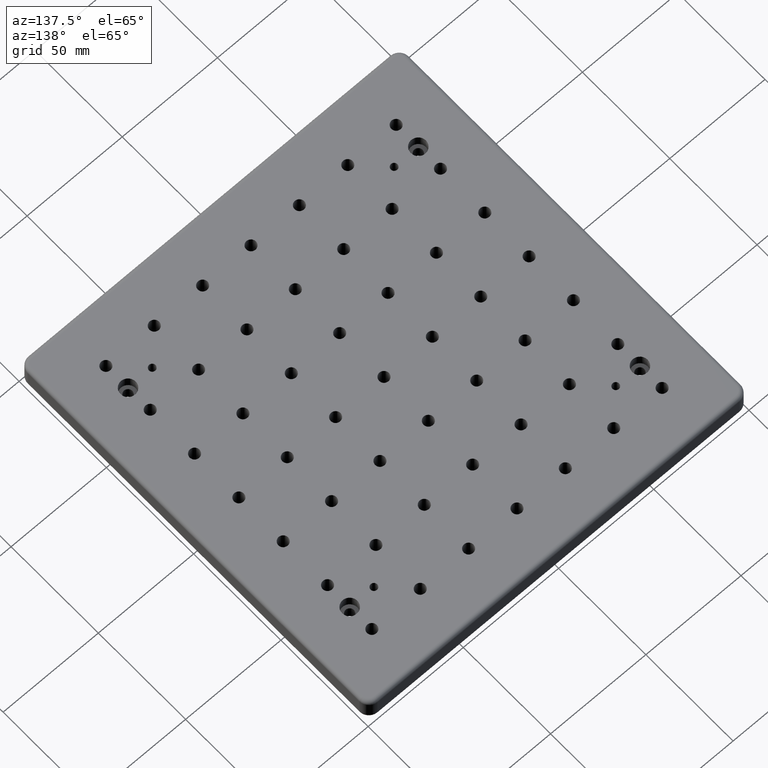
[diagram: clean part render]
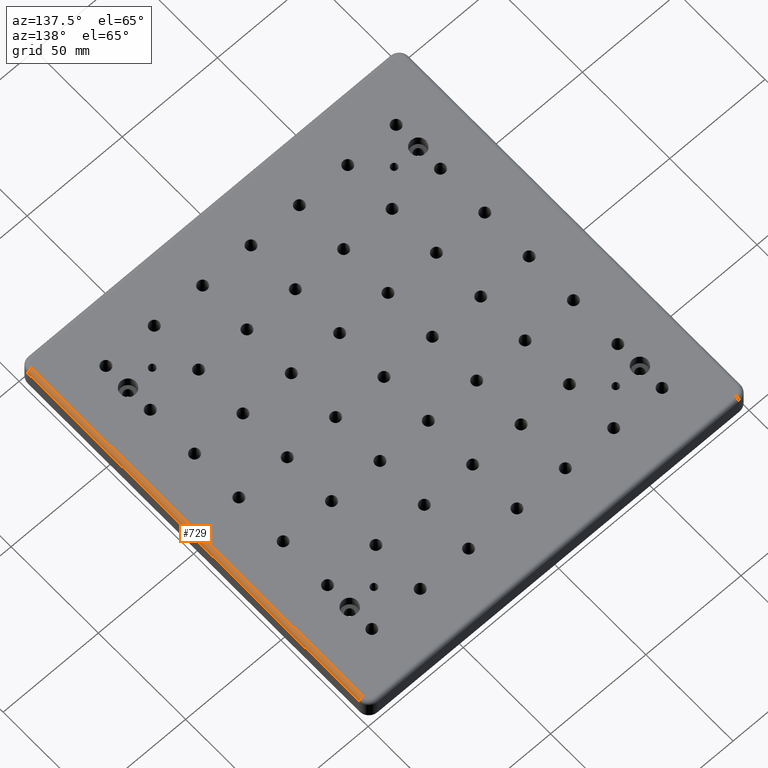
[diagram: same view with one face highlighted and labeled with its STEP entity id]
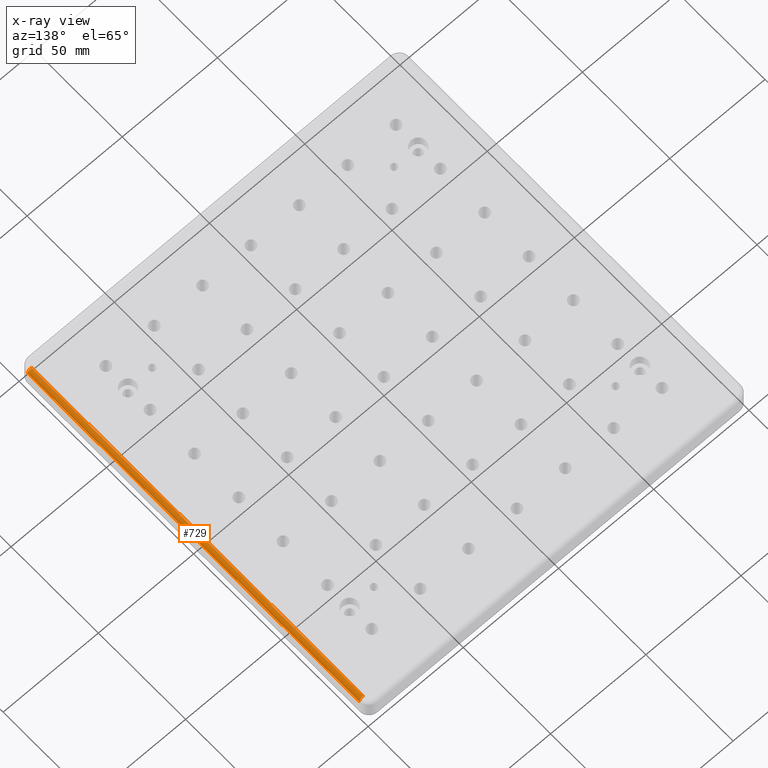
[diagram: x-ray of the same camera — body ghosted, the highlighted face saturated]
A machine part, auxiliary view. The second image highlights one B-rep face of the part: STEP entity #729.
The next image is the same camera in x-ray: the body ghosted, the highlighted face saturated — about 0% of this face is hidden behind the body in this view.
In plain terms, the highlighted cylindrical surface (edge-blend (fillet) strip) has radius 2 mm, axis along (0, -1, 0).
Its self-contained STEP definition (entity closure, byte-faithful):
#329 = FACE_OUTER_BOUND ( 'NONE', #3176, .T. ) ;
#487 = VERTEX_POINT ( 'NONE', #3433 ) ;
#645 = EDGE_CURVE ( 'NONE', #4885, #3495, #1460, .T. ) ;
#729 = ADVANCED_FACE ( 'NONE', ( #329 ), #3578, .T. ) ;
#750 = EDGE_CURVE ( 'NONE', #487, #1848, #2294, .T. ) ;
#829 = ORIENTED_EDGE ( 'NONE', *, *, #1566, .F. ) ;
#1175 = CARTESIAN_POINT ( 'NONE',  ( 98.00000000000000000, 94.99999999999994300, 0.0000000000000000000 ) ) ;
#1185 = DIRECTION ( 'NONE',  ( 0.0000000000000000000, 0.0000000000000000000, -1.000000000000000000 ) ) ;
#1460 = CIRCLE ( 'NONE', #3155, 2.000000000000000000 ) ;
#1566 = EDGE_CURVE ( 'NONE', #3495, #1848, #5006, .T. ) ;
#1648 = ORIENTED_EDGE ( 'NONE', *, *, #750, .T. ) ;
#1679 = AXIS2_PLACEMENT_3D ( 'NONE', #2786, #3644, #3235 ) ;
#1694 = DIRECTION ( 'NONE',  ( -7.304098846218138100E-017, 1.000000000000000000, 0.0000000000000000000 ) ) ;
#1822 = CARTESIAN_POINT ( 'NONE',  ( 100.0000000000000100, -95.00000000000001400, -2.000000000000000000 ) ) ;
#1848 = VERTEX_POINT ( 'NONE', #1175 ) ;
#1955 = CARTESIAN_POINT ( 'NONE',  ( 98.00000000000001400, -95.00000000000001400, 0.0000000000000000000 ) ) ;
#2103 = DIRECTION ( 'NONE',  ( 1.000000000000000000, -6.938893903907222100E-015, 0.0000000000000000000 ) ) ;
#2294 = CIRCLE ( 'NONE', #2803, 2.000000000000001800 ) ;
#2359 = VECTOR ( 'NONE', #1694, 1000.000000000000000 ) ;
#2435 = DIRECTION ( 'NONE',  ( 0.0000000000000000000, -1.000000000000000000, 0.0000000000000000000 ) ) ;
#2504 = CARTESIAN_POINT ( 'NONE',  ( 98.00000000000000000, 94.99999999999994300, -1.999999999999999100 ) ) ;
#2521 = LINE ( 'NONE', #1822, #4665 ) ;
#2786 = CARTESIAN_POINT ( 'NONE',  ( 98.00000000000000000, 94.99999999999995700, -2.000000000000000000 ) ) ;
#2803 = AXIS2_PLACEMENT_3D ( 'NONE', #2504, #3313, #2103 ) ;
#2805 = CARTESIAN_POINT ( 'NONE',  ( 98.00000000000001400, -95.00000000000001400, -2.000000000000000000 ) ) ;
#3155 = AXIS2_PLACEMENT_3D ( 'NONE', #2805, #2435, #1185 ) ;
#3176 = EDGE_LOOP ( 'NONE', ( #1648, #829, #4712, #3998 ) ) ;
#3235 = DIRECTION ( 'NONE',  ( 1.000000000000000000, 0.0000000000000000000, 0.0000000000000000000 ) ) ;
#3313 = DIRECTION ( 'NONE',  ( -6.938893903907222900E-015, -1.000000000000000000, 0.0000000000000000000 ) ) ;
#3358 = EDGE_CURVE ( 'NONE', #487, #4885, #2521, .T. ) ;
#3433 = CARTESIAN_POINT ( 'NONE',  ( 100.0000000000000000, 94.99999999999992900, -2.000000000000003600 ) ) ;
#3475 = DIRECTION ( 'NONE',  ( 7.304098846218138100E-017, -1.000000000000000000, -0.0000000000000000000 ) ) ;
#3495 = VERTEX_POINT ( 'NONE', #1955 ) ;
#3578 = CYLINDRICAL_SURFACE ( 'NONE', #1679, 2.000000000000001800 ) ;
#3640 = CARTESIAN_POINT ( 'NONE',  ( 100.0000000000000100, -95.00000000000001400, -2.000000000000001800 ) ) ;
#3644 = DIRECTION ( 'NONE',  ( 7.304098846218138100E-017, -1.000000000000000000, 0.0000000000000000000 ) ) ;
#3998 = ORIENTED_EDGE ( 'NONE', *, *, #3358, .F. ) ;
#4159 = CARTESIAN_POINT ( 'NONE',  ( 98.00000000000000000, 94.99999999999992900, 0.0000000000000000000 ) ) ;
#4665 = VECTOR ( 'NONE', #3475, 1000.000000000000000 ) ;
#4712 = ORIENTED_EDGE ( 'NONE', *, *, #645, .F. ) ;
#4885 = VERTEX_POINT ( 'NONE', #3640 ) ;
#5006 = LINE ( 'NONE', #4159, #2359 ) ;